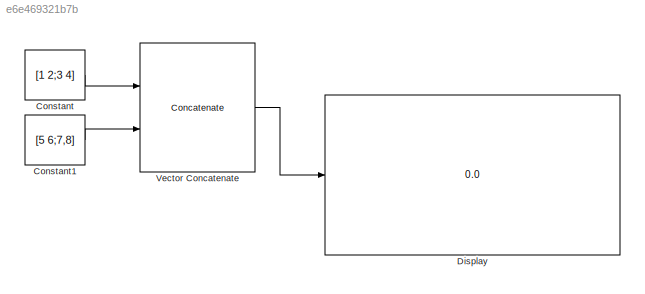
MODEL slx_e6e469321b7b
KIND model
CONFIG AbsTol = auto
CONFIG FixedStep = auto
CONFIG MaxStep = auto
CONFIG MinStep = auto
CONFIG RelTol = 1e-3
CONFIG SampleTimeConstraint = Unconstrained
CONFIG Solver = VariableStepAuto
CONFIG SolverMode = Auto
CONFIG SolverName = VariableStepAuto
CONFIG StartTime = 0.0
CONFIG StopTime = 10.0
BLOCK [Constant] Constant
  Value = [1 2;3 4]
BLOCK [Constant] Constant1
  Value = [5 6;7,8]
BLOCK [Display] Display
  Decimation = 1
  Ports = [1]
BLOCK [Concatenate] Vector Concatenate
  Mode = Multidimensional array
  Ports = [2, 1]
LINE Constant1:1 -> Vector Concatenate:2
LINE Constant:1 -> Vector Concatenate:1
LINE Vector Concatenate:1 -> Display:1
